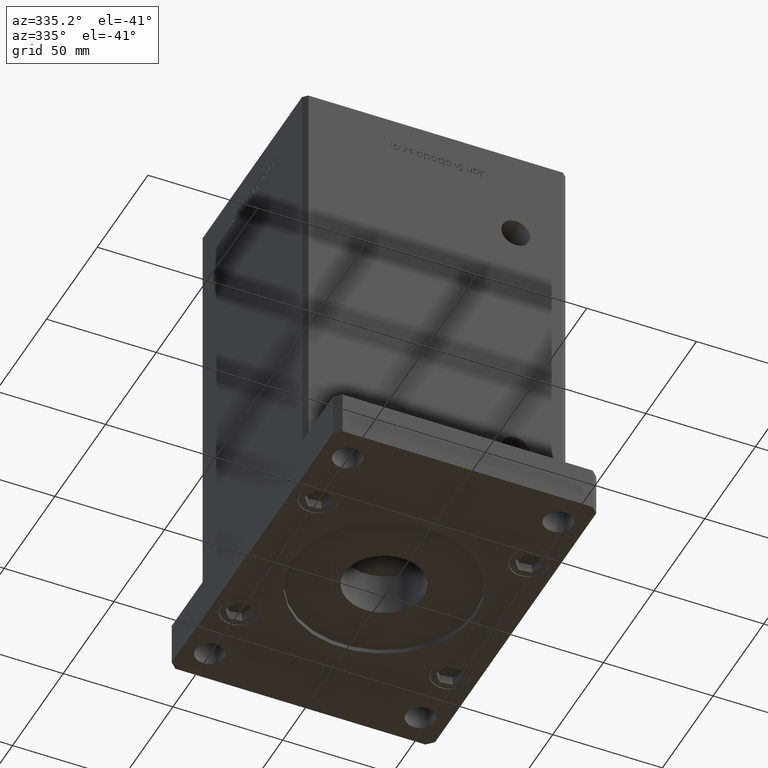
[diagram: clean part render]
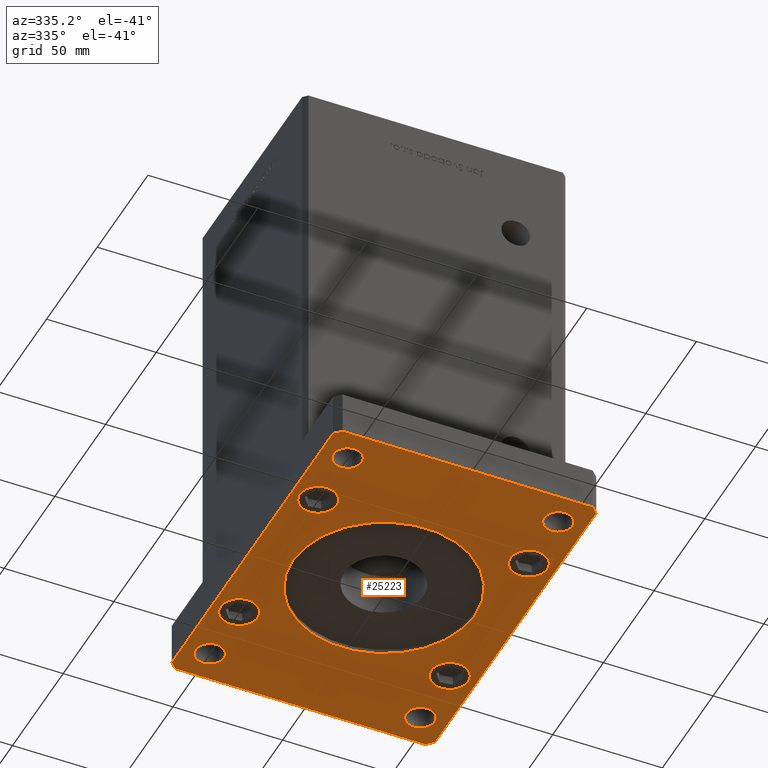
[diagram: same view with one face highlighted and labeled with its STEP entity id]
A machine part, auxiliary view. The second image highlights one B-rep face of the part: STEP entity #25223.
In plain terms, the highlighted planar face has unit normal (0, 0, 1).
Its self-contained STEP definition (entity closure, byte-faithful):
#230 = AXIS2_PLACEMENT_3D ( 'NONE', #3662, #44070, #53286 ) ;
#950 = DIRECTION ( 'NONE',  ( 2.618450529776312260E-16, -1.000000000000000000, 0.000000000000000000 ) ) ;
#1032 = VERTEX_POINT ( 'NONE', #36712 ) ;
#1108 = ORIENTED_EDGE ( 'NONE', *, *, #34745, .T. ) ;
#1352 = DIRECTION ( 'NONE',  ( 1.000000000000000000, 0.000000000000000000, -0.000000000000000000 ) ) ;
#1498 = AXIS2_PLACEMENT_3D ( 'NONE', #50313, #4756, #29681 ) ;
#2266 = LINE ( 'NONE', #23667, #43518 ) ;
#2648 = VECTOR ( 'NONE', #950, 1000.000000000000000 ) ;
#3166 = EDGE_CURVE ( 'NONE', #20511, #48658, #3185, .T. ) ;
#3185 = CIRCLE ( 'NONE', #24806, 8.499999999999992895 ) ;
#3254 = VERTEX_POINT ( 'NONE', #32941 ) ;
#3303 = ORIENTED_EDGE ( 'NONE', *, *, #24381, .T. ) ;
#3662 = CARTESIAN_POINT ( 'NONE',  ( -48.00000000000000000, 68.00000000000001421, 0.000000000000000000 ) ) ;
#3985 = CARTESIAN_POINT ( 'NONE',  ( 48.00000000000000000, -38.99999999999999289, 0.000000000000000000 ) ) ;
#4173 = DIRECTION ( 'NONE',  ( -1.000000000000000000, -2.434699615406043739E-16, 0.000000000000000000 ) ) ;
#4242 = DIRECTION ( 'NONE',  ( 0.000000000000000000, 0.000000000000000000, 1.000000000000000000 ) ) ;
#4375 = DIRECTION ( 'NONE',  ( 0.000000000000000000, 0.000000000000000000, 1.000000000000000000 ) ) ;
#4427 = AXIS2_PLACEMENT_3D ( 'NONE', #15123, #49821, #46286 ) ;
#4756 = DIRECTION ( 'NONE',  ( 0.000000000000000000, 0.000000000000000000, 1.000000000000000000 ) ) ;
#4888 = FACE_OUTER_BOUND ( 'NONE', #33578, .T. ) ;
#5175 = VERTEX_POINT ( 'NONE', #8447 ) ;
#5228 = EDGE_CURVE ( 'NONE', #16765, #16578, #12229, .T. ) ;
#6002 = ORIENTED_EDGE ( 'NONE', *, *, #46256, .F. ) ;
#6025 = ORIENTED_EDGE ( 'NONE', *, *, #17720, .F. ) ;
#6257 = ORIENTED_EDGE ( 'NONE', *, *, #8035, .F. ) ;
#6627 = CARTESIAN_POINT ( 'NONE',  ( 60.00000000000000711, 79.50000000000001421, 0.000000000000000000 ) ) ;
#7029 = CARTESIAN_POINT ( 'NONE',  ( 60.00000000000000000, -79.49999999999990052, 0.000000000000000000 ) ) ;
#7652 = DIRECTION ( 'NONE',  ( 1.000000000000000000, 0.000000000000000000, 0.000000000000000000 ) ) ;
#7677 = DIRECTION ( 'NONE',  ( 1.000000000000000000, 0.000000000000000000, 0.000000000000000000 ) ) ;
#7804 = EDGE_CURVE ( 'NONE', #10296, #31357, #41241, .T. ) ;
#7902 = CARTESIAN_POINT ( 'NONE',  ( 56.49999999999999289, 38.99999999999999289, 0.000000000000000000 ) ) ;
#8035 = EDGE_CURVE ( 'NONE', #52625, #11447, #23093, .T. ) ;
#8387 = CIRCLE ( 'NONE', #52556, 6.500000000000005329 ) ;
#8447 = CARTESIAN_POINT ( 'NONE',  ( 54.50000000000000711, 67.99999999999998579, 0.000000000000000000 ) ) ;
#8958 = CIRCLE ( 'NONE', #27971, 41.50000000000000000 ) ;
#9103 = VERTEX_POINT ( 'NONE', #37948 ) ;
#9759 = PLANE ( 'NONE',  #36159 ) ;
#9786 = VERTEX_POINT ( 'NONE', #7902 ) ;
#10296 = VERTEX_POINT ( 'NONE', #18630 ) ;
#10563 = EDGE_LOOP ( 'NONE', ( #29545, #51802 ) ) ;
#10732 = CIRCLE ( 'NONE', #51423, 41.50000000000000000 ) ;
#10816 = CARTESIAN_POINT ( 'NONE',  ( 48.00000000000000000, 67.99999999999998579, 0.000000000000000000 ) ) ;
#11447 = VERTEX_POINT ( 'NONE', #49092 ) ;
#11981 = ORIENTED_EDGE ( 'NONE', *, *, #27166, .T. ) ;
#12030 = LINE ( 'NONE', #24496, #35163 ) ;
#12229 = LINE ( 'NONE', #45042, #52456 ) ;
#12763 = FACE_BOUND ( 'NONE', #29236, .T. ) ;
#13251 = DIRECTION ( 'NONE',  ( 1.000000000000000000, 0.000000000000000000, 0.000000000000000000 ) ) ;
#13283 = FACE_BOUND ( 'NONE', #10563, .T. ) ;
#13398 = AXIS2_PLACEMENT_3D ( 'NONE', #43640, #23845, #52611 ) ;
#13553 = DIRECTION ( 'NONE',  ( 0.000000000000000000, 0.000000000000000000, 1.000000000000000000 ) ) ;
#13742 = DIRECTION ( 'NONE',  ( 0.000000000000000000, 0.000000000000000000, 1.000000000000000000 ) ) ;
#13976 = VERTEX_POINT ( 'NONE', #31403 ) ;
#14422 = DIRECTION ( 'NONE',  ( 1.000000000000000000, 9.738798461624180871E-16, 0.000000000000000000 ) ) ;
#14662 = CARTESIAN_POINT ( 'NONE',  ( -48.00000000000000711, -39.00000000000000000, 0.000000000000000000 ) ) ;
#14963 = DIRECTION ( 'NONE',  ( 0.000000000000000000, 0.000000000000000000, 1.000000000000000000 ) ) ;
#15086 = EDGE_CURVE ( 'NONE', #48658, #20511, #23863, .T. ) ;
#15123 = CARTESIAN_POINT ( 'NONE',  ( 48.00000000000000000, -38.99999999999999289, 0.000000000000000000 ) ) ;
#15822 = CARTESIAN_POINT ( 'NONE',  ( 0.000000000000000000, 0.000000000000000000, 0.000000000000000000 ) ) ;
#15850 = ORIENTED_EDGE ( 'NONE', *, *, #35839, .T. ) ;
#16204 = CARTESIAN_POINT ( 'NONE',  ( 41.49999999999999289, 67.99999999999998579, 0.000000000000000000 ) ) ;
#16559 = DIRECTION ( 'NONE',  ( 1.000000000000000000, 0.000000000000000000, 0.000000000000000000 ) ) ;
#16578 = VERTEX_POINT ( 'NONE', #35671 ) ;
#16659 = AXIS2_PLACEMENT_3D ( 'NONE', #21436, #4375, #16559 ) ;
#16765 = VERTEX_POINT ( 'NONE', #6627 ) ;
#17092 = FACE_BOUND ( 'NONE', #23569, .T. ) ;
#17378 = ORIENTED_EDGE ( 'NONE', *, *, #18853, .F. ) ;
#17720 = EDGE_CURVE ( 'NONE', #16578, #53610, #12030, .T. ) ;
#17932 = CIRCLE ( 'NONE', #1498, 6.500000000000005329 ) ;
#18620 = DIRECTION ( 'NONE',  ( 4.364084216293856438E-17, 1.000000000000000000, 0.000000000000000000 ) ) ;
#18630 = CARTESIAN_POINT ( 'NONE',  ( 54.49999999999997868, -68.00000000000001421, 0.000000000000000000 ) ) ;
#18853 = EDGE_CURVE ( 'NONE', #53610, #28430, #21158, .T. ) ;
#19033 = VERTEX_POINT ( 'NONE', #26557 ) ;
#19289 = CIRCLE ( 'NONE', #16659, 8.500000000000000000 ) ;
#19465 = VECTOR ( 'NONE', #21410, 1000.000000000000114 ) ;
#19469 = DIRECTION ( 'NONE',  ( 0.000000000000000000, 0.000000000000000000, 1.000000000000000000 ) ) ;
#19513 = VERTEX_POINT ( 'NONE', #20763 ) ;
#19613 = VECTOR ( 'NONE', #14422, 1000.000000000000000 ) ;
#19829 = DIRECTION ( 'NONE',  ( 1.000000000000000000, 0.000000000000000000, 0.000000000000000000 ) ) ;
#19980 = DIRECTION ( 'NONE',  ( 0.000000000000000000, 0.000000000000000000, -1.000000000000000000 ) ) ;
#20363 = ORIENTED_EDGE ( 'NONE', *, *, #44967, .F. ) ;
#20475 = AXIS2_PLACEMENT_3D ( 'NONE', #25269, #53507, #7677 ) ;
#20511 = VERTEX_POINT ( 'NONE', #28628 ) ;
#20763 = CARTESIAN_POINT ( 'NONE',  ( -59.99999999999998579, -79.50000000000002842, 0.000000000000000000 ) ) ;
#20821 = AXIS2_PLACEMENT_3D ( 'NONE', #10816, #19469, #43891 ) ;
#20985 = CIRCLE ( 'NONE', #51312, 6.500000000000005329 ) ;
#21026 = DIRECTION ( 'NONE',  ( 1.000000000000000000, 0.000000000000000000, 0.000000000000000000 ) ) ;
#21044 = DIRECTION ( 'NONE',  ( 0.000000000000000000, 0.000000000000000000, 1.000000000000000000 ) ) ;
#21158 = LINE ( 'NONE', #25225, #49966 ) ;
#21212 = AXIS2_PLACEMENT_3D ( 'NONE', #37908, #50406, #13251 ) ;
#21289 = CARTESIAN_POINT ( 'NONE',  ( 41.49999999999996447, -68.00000000000001421, 0.000000000000000000 ) ) ;
#21410 = DIRECTION ( 'NONE',  ( 0.7071067811865459074, 0.7071067811865491270, 0.000000000000000000 ) ) ;
#21436 = CARTESIAN_POINT ( 'NONE',  ( -48.00000000000000711, -39.00000000000000000, 0.000000000000000000 ) ) ;
#21677 = EDGE_LOOP ( 'NONE', ( #24156, #15850 ) ) ;
#21754 = CIRCLE ( 'NONE', #4427, 8.499999999999992895 ) ;
#22211 = DIRECTION ( 'NONE',  ( 0.000000000000000000, 0.000000000000000000, 1.000000000000000000 ) ) ;
#22417 = DIRECTION ( 'NONE',  ( 1.000000000000000000, 0.000000000000000000, 0.000000000000000000 ) ) ;
#22443 = CARTESIAN_POINT ( 'NONE',  ( 60.00000000000000000, -79.49999999999990052, 0.000000000000000000 ) ) ;
#22454 = EDGE_CURVE ( 'NONE', #9786, #52777, #45747, .T. ) ;
#22940 = EDGE_CURVE ( 'NONE', #5175, #36505, #8387, .T. ) ;
#23093 = LINE ( 'NONE', #51577, #19613 ) ;
#23119 = ORIENTED_EDGE ( 'NONE', *, *, #47128, .T. ) ;
#23206 = CIRCLE ( 'NONE', #53525, 8.499999999999992895 ) ;
#23342 = DIRECTION ( 'NONE',  ( 1.000000000000000000, 0.000000000000000000, 0.000000000000000000 ) ) ;
#23569 = EDGE_LOOP ( 'NONE', ( #52409, #33126 ) ) ;
#23667 = CARTESIAN_POINT ( 'NONE',  ( -59.99999999999998579, -79.50000000000002842, 0.000000000000000000 ) ) ;
#23741 = AXIS2_PLACEMENT_3D ( 'NONE', #14662, #35530, #23342 ) ;
#23845 = DIRECTION ( 'NONE',  ( 0.000000000000000000, 0.000000000000000000, 1.000000000000000000 ) ) ;
#23862 = EDGE_LOOP ( 'NONE', ( #23119, #47210 ) ) ;
#23863 = CIRCLE ( 'NONE', #37701, 8.499999999999992895 ) ;
#24156 = ORIENTED_EDGE ( 'NONE', *, *, #39251, .T. ) ;
#24264 = VERTEX_POINT ( 'NONE', #24296 ) ;
#24296 = CARTESIAN_POINT ( 'NONE',  ( 56.49999999999999289, -38.99999999999999289, 0.000000000000000000 ) ) ;
#24381 = EDGE_CURVE ( 'NONE', #31357, #10296, #17932, .T. ) ;
#24496 = CARTESIAN_POINT ( 'NONE',  ( 57.00000000000002132, 82.50000000000002842, 0.000000000000000000 ) ) ;
#24595 = DIRECTION ( 'NONE',  ( -1.000000000000000000, 0.000000000000000000, 0.000000000000000000 ) ) ;
#24806 = AXIS2_PLACEMENT_3D ( 'NONE', #25926, #13742, #22417 ) ;
#25223 = ADVANCED_FACE ( 'NONE', ( #41751, #4888, #17092, #25474, #12763, #46900, #26269, #37940, #13283, #29806 ), #9759, .F. ) ;
#25225 = CARTESIAN_POINT ( 'NONE',  ( -57.00000000000003553, 82.50000000000000000, 0.000000000000000000 ) ) ;
#25269 = CARTESIAN_POINT ( 'NONE',  ( 48.00000000000000000, 38.99999999999999289, 0.000000000000000000 ) ) ;
#25308 = VERTEX_POINT ( 'NONE', #7029 ) ;
#25474 = FACE_BOUND ( 'NONE', #36216, .T. ) ;
#25735 = CARTESIAN_POINT ( 'NONE',  ( 48.00000000000000000, 67.99999999999998579, 0.000000000000000000 ) ) ;
#25926 = CARTESIAN_POINT ( 'NONE',  ( -48.00000000000001421, 39.00000000000000000, 0.000000000000000000 ) ) ;
#26045 = ORIENTED_EDGE ( 'NONE', *, *, #22454, .T. ) ;
#26269 = FACE_BOUND ( 'NONE', #21677, .T. ) ;
#26391 = DIRECTION ( 'NONE',  ( 0.000000000000000000, 0.000000000000000000, 1.000000000000000000 ) ) ;
#26557 = CARTESIAN_POINT ( 'NONE',  ( -41.49999999999999289, 68.00000000000001421, 0.000000000000000000 ) ) ;
#26658 = DIRECTION ( 'NONE',  ( 0.7071067811865474617, -0.7071067811865474617, 0.000000000000000000 ) ) ;
#27166 = EDGE_CURVE ( 'NONE', #52777, #9786, #23206, .T. ) ;
#27333 = CARTESIAN_POINT ( 'NONE',  ( -41.50000000000000000, 0.000000000000000000, 0.000000000000000000 ) ) ;
#27574 = CARTESIAN_POINT ( 'NONE',  ( -54.49999999999997868, -68.00000000000001421, 0.000000000000000000 ) ) ;
#27971 = AXIS2_PLACEMENT_3D ( 'NONE', #15822, #40756, #52991 ) ;
#28160 = EDGE_LOOP ( 'NONE', ( #11981, #26045 ) ) ;
#28367 = CARTESIAN_POINT ( 'NONE',  ( 39.50000000000000711, 38.99999999999999289, 0.000000000000000000 ) ) ;
#28430 = VERTEX_POINT ( 'NONE', #49557 ) ;
#28628 = CARTESIAN_POINT ( 'NONE',  ( -39.50000000000002132, 39.00000000000000000, 0.000000000000000000 ) ) ;
#29088 = ORIENTED_EDGE ( 'NONE', *, *, #48211, .F. ) ;
#29236 = EDGE_LOOP ( 'NONE', ( #43112, #46806 ) ) ;
#29545 = ORIENTED_EDGE ( 'NONE', *, *, #15086, .T. ) ;
#29681 = DIRECTION ( 'NONE',  ( 1.000000000000000000, 0.000000000000000000, 0.000000000000000000 ) ) ;
#29806 = FACE_BOUND ( 'NONE', #52081, .T. ) ;
#30247 = VERTEX_POINT ( 'NONE', #27333 ) ;
#30338 = CIRCLE ( 'NONE', #20821, 6.500000000000005329 ) ;
#30463 = LINE ( 'NONE', #42405, #2648 ) ;
#30843 = CARTESIAN_POINT ( 'NONE',  ( -57.00000000000003553, 82.50000000000000000, 0.000000000000000000 ) ) ;
#31357 = VERTEX_POINT ( 'NONE', #21289 ) ;
#31403 = CARTESIAN_POINT ( 'NONE',  ( -56.50000000000000711, -39.00000000000000000, 0.000000000000000000 ) ) ;
#31543 = CARTESIAN_POINT ( 'NONE',  ( 41.50000000000000000, 5.082284216461515748E-15, 0.000000000000000000 ) ) ;
#31555 = VERTEX_POINT ( 'NONE', #31543 ) ;
#32064 = EDGE_CURVE ( 'NONE', #25308, #16765, #38405, .T. ) ;
#32941 = CARTESIAN_POINT ( 'NONE',  ( -39.50000000000000711, -39.00000000000000000, 0.000000000000000000 ) ) ;
#33126 = ORIENTED_EDGE ( 'NONE', *, *, #42551, .T. ) ;
#33193 = CARTESIAN_POINT ( 'NONE',  ( -56.50000000000000711, 39.00000000000000000, 0.000000000000000000 ) ) ;
#33578 = EDGE_LOOP ( 'NONE', ( #6257, #45867, #44513, #17378, #6025, #46117, #35234, #29088 ) ) ;
#33761 = VECTOR ( 'NONE', #18620, 1000.000000000000000 ) ;
#34489 = EDGE_CURVE ( 'NONE', #28430, #19513, #30463, .T. ) ;
#34745 = EDGE_CURVE ( 'NONE', #36505, #5175, #30338, .T. ) ;
#35163 = VECTOR ( 'NONE', #4173, 1000.000000000000000 ) ;
#35234 = ORIENTED_EDGE ( 'NONE', *, *, #32064, .F. ) ;
#35514 = VERTEX_POINT ( 'NONE', #46083 ) ;
#35530 = DIRECTION ( 'NONE',  ( 0.000000000000000000, 0.000000000000000000, 1.000000000000000000 ) ) ;
#35568 = CARTESIAN_POINT ( 'NONE',  ( 47.99999999999997158, -68.00000000000001421, 0.000000000000000000 ) ) ;
#35671 = CARTESIAN_POINT ( 'NONE',  ( 57.00000000000002132, 82.50000000000002842, 0.000000000000000000 ) ) ;
#35839 = EDGE_CURVE ( 'NONE', #24264, #35514, #21754, .T. ) ;
#35917 = ORIENTED_EDGE ( 'NONE', *, *, #7804, .T. ) ;
#36159 = AXIS2_PLACEMENT_3D ( 'NONE', #46367, #13553, #1352 ) ;
#36216 = EDGE_LOOP ( 'NONE', ( #1108, #42373 ) ) ;
#36505 = VERTEX_POINT ( 'NONE', #16204 ) ;
#36631 = DIRECTION ( 'NONE',  ( 0.000000000000000000, 0.000000000000000000, 1.000000000000000000 ) ) ;
#36712 = CARTESIAN_POINT ( 'NONE',  ( -41.49999999999996447, -68.00000000000001421, 0.000000000000000000 ) ) ;
#37701 = AXIS2_PLACEMENT_3D ( 'NONE', #41366, #4242, #21026 ) ;
#37908 = CARTESIAN_POINT ( 'NONE',  ( -47.99999999999997158, -68.00000000000001421, 0.000000000000000000 ) ) ;
#37940 = FACE_BOUND ( 'NONE', #28160, .T. ) ;
#37948 = CARTESIAN_POINT ( 'NONE',  ( -54.50000000000000711, 68.00000000000001421, 0.000000000000000000 ) ) ;
#38405 = LINE ( 'NONE', #22443, #33761 ) ;
#38452 = DIRECTION ( 'NONE',  ( 1.000000000000000000, 0.000000000000000000, 0.000000000000000000 ) ) ;
#39102 = VERTEX_POINT ( 'NONE', #27574 ) ;
#39251 = EDGE_CURVE ( 'NONE', #35514, #24264, #52928, .T. ) ;
#40198 = CIRCLE ( 'NONE', #13398, 6.500000000000005329 ) ;
#40539 = EDGE_CURVE ( 'NONE', #9103, #19033, #46979, .T. ) ;
#40695 = DIRECTION ( 'NONE',  ( -0.7071067811865435759, 0.7071067811865515695, 0.000000000000000000 ) ) ;
#40756 = DIRECTION ( 'NONE',  ( 0.000000000000000000, 0.000000000000000000, -1.000000000000000000 ) ) ;
#40781 = EDGE_CURVE ( 'NONE', #3254, #13976, #19289, .T. ) ;
#41125 = EDGE_CURVE ( 'NONE', #19513, #52625, #2266, .T. ) ;
#41241 = CIRCLE ( 'NONE', #48186, 6.500000000000005329 ) ;
#41366 = CARTESIAN_POINT ( 'NONE',  ( -48.00000000000001421, 39.00000000000000000, 0.000000000000000000 ) ) ;
#41751 = FACE_BOUND ( 'NONE', #53144, .T. ) ;
#42373 = ORIENTED_EDGE ( 'NONE', *, *, #22940, .T. ) ;
#42401 = CARTESIAN_POINT ( 'NONE',  ( -47.99999999999997158, -68.00000000000001421, 0.000000000000000000 ) ) ;
#42405 = CARTESIAN_POINT ( 'NONE',  ( -60.00000000000002842, 79.50000000000001421, 0.000000000000000000 ) ) ;
#42551 = EDGE_CURVE ( 'NONE', #1032, #39102, #20985, .T. ) ;
#43112 = ORIENTED_EDGE ( 'NONE', *, *, #40539, .T. ) ;
#43518 = VECTOR ( 'NONE', #26658, 1000.000000000000114 ) ;
#43640 = CARTESIAN_POINT ( 'NONE',  ( -48.00000000000000000, 68.00000000000001421, 0.000000000000000000 ) ) ;
#43891 = DIRECTION ( 'NONE',  ( 1.000000000000000000, 0.000000000000000000, 0.000000000000000000 ) ) ;
#44070 = DIRECTION ( 'NONE',  ( 0.000000000000000000, 0.000000000000000000, 1.000000000000000000 ) ) ;
#44513 = ORIENTED_EDGE ( 'NONE', *, *, #34489, .F. ) ;
#44604 = CIRCLE ( 'NONE', #21212, 6.500000000000005329 ) ;
#44786 = CARTESIAN_POINT ( 'NONE',  ( 48.00000000000000000, 38.99999999999999289, 0.000000000000000000 ) ) ;
#44967 = EDGE_CURVE ( 'NONE', #30247, #31555, #8958, .T. ) ;
#45034 = DIRECTION ( 'NONE',  ( -0.7071067811865474617, -0.7071067811865474617, 0.000000000000000000 ) ) ;
#45042 = CARTESIAN_POINT ( 'NONE',  ( 60.00000000000000711, 79.50000000000001421, 0.000000000000000000 ) ) ;
#45747 = CIRCLE ( 'NONE', #20475, 8.499999999999992895 ) ;
#45835 = LINE ( 'NONE', #49628, #19465 ) ;
#45867 = ORIENTED_EDGE ( 'NONE', *, *, #41125, .F. ) ;
#46083 = CARTESIAN_POINT ( 'NONE',  ( 39.50000000000000711, -38.99999999999999289, 0.000000000000000000 ) ) ;
#46117 = ORIENTED_EDGE ( 'NONE', *, *, #5228, .F. ) ;
#46256 = EDGE_CURVE ( 'NONE', #31555, #30247, #10732, .T. ) ;
#46278 = CIRCLE ( 'NONE', #23741, 8.500000000000000000 ) ;
#46286 = DIRECTION ( 'NONE',  ( 1.000000000000000000, 0.000000000000000000, 0.000000000000000000 ) ) ;
#46330 = CARTESIAN_POINT ( 'NONE',  ( -56.99999999999999289, -82.50000000000001421, 0.000000000000000000 ) ) ;
#46367 = CARTESIAN_POINT ( 'NONE',  ( 0.000000000000000000, 0.000000000000000000, 0.000000000000000000 ) ) ;
#46806 = ORIENTED_EDGE ( 'NONE', *, *, #52354, .T. ) ;
#46900 = FACE_BOUND ( 'NONE', #23862, .T. ) ;
#46979 = CIRCLE ( 'NONE', #230, 6.500000000000005329 ) ;
#47128 = EDGE_CURVE ( 'NONE', #13976, #3254, #46278, .T. ) ;
#47210 = ORIENTED_EDGE ( 'NONE', *, *, #40781, .T. ) ;
#48186 = AXIS2_PLACEMENT_3D ( 'NONE', #35568, #14963, #19829 ) ;
#48211 = EDGE_CURVE ( 'NONE', #11447, #25308, #45835, .T. ) ;
#48658 = VERTEX_POINT ( 'NONE', #33193 ) ;
#49092 = CARTESIAN_POINT ( 'NONE',  ( 57.00000000000000711, -82.49999999999990052, 0.000000000000000000 ) ) ;
#49557 = CARTESIAN_POINT ( 'NONE',  ( -60.00000000000002842, 79.50000000000001421, 0.000000000000000000 ) ) ;
#49628 = CARTESIAN_POINT ( 'NONE',  ( 57.00000000000000711, -82.49999999999990052, 0.000000000000000000 ) ) ;
#49821 = DIRECTION ( 'NONE',  ( 0.000000000000000000, 0.000000000000000000, 1.000000000000000000 ) ) ;
#49966 = VECTOR ( 'NONE', #45034, 1000.000000000000114 ) ;
#50234 = EDGE_CURVE ( 'NONE', #39102, #1032, #44604, .T. ) ;
#50313 = CARTESIAN_POINT ( 'NONE',  ( 47.99999999999997158, -68.00000000000001421, 0.000000000000000000 ) ) ;
#50406 = DIRECTION ( 'NONE',  ( 0.000000000000000000, 0.000000000000000000, 1.000000000000000000 ) ) ;
#51179 = AXIS2_PLACEMENT_3D ( 'NONE', #3985, #21044, #53625 ) ;
#51312 = AXIS2_PLACEMENT_3D ( 'NONE', #42401, #26391, #51363 ) ;
#51363 = DIRECTION ( 'NONE',  ( 1.000000000000000000, 0.000000000000000000, 0.000000000000000000 ) ) ;
#51423 = AXIS2_PLACEMENT_3D ( 'NONE', #53633, #19980, #24595 ) ;
#51577 = CARTESIAN_POINT ( 'NONE',  ( -56.99999999999999289, -82.50000000000001421, 0.000000000000000000 ) ) ;
#51802 = ORIENTED_EDGE ( 'NONE', *, *, #3166, .T. ) ;
#52081 = EDGE_LOOP ( 'NONE', ( #3303, #35917 ) ) ;
#52354 = EDGE_CURVE ( 'NONE', #19033, #9103, #40198, .T. ) ;
#52409 = ORIENTED_EDGE ( 'NONE', *, *, #50234, .T. ) ;
#52456 = VECTOR ( 'NONE', #40695, 999.9999999999998863 ) ;
#52556 = AXIS2_PLACEMENT_3D ( 'NONE', #25735, #22211, #38452 ) ;
#52611 = DIRECTION ( 'NONE',  ( 1.000000000000000000, 0.000000000000000000, 0.000000000000000000 ) ) ;
#52625 = VERTEX_POINT ( 'NONE', #46330 ) ;
#52777 = VERTEX_POINT ( 'NONE', #28367 ) ;
#52928 = CIRCLE ( 'NONE', #51179, 8.499999999999992895 ) ;
#52991 = DIRECTION ( 'NONE',  ( -1.000000000000000000, 0.000000000000000000, 0.000000000000000000 ) ) ;
#53144 = EDGE_LOOP ( 'NONE', ( #20363, #6002 ) ) ;
#53286 = DIRECTION ( 'NONE',  ( 1.000000000000000000, 0.000000000000000000, 0.000000000000000000 ) ) ;
#53507 = DIRECTION ( 'NONE',  ( 0.000000000000000000, 0.000000000000000000, 1.000000000000000000 ) ) ;
#53525 = AXIS2_PLACEMENT_3D ( 'NONE', #44786, #36631, #7652 ) ;
#53610 = VERTEX_POINT ( 'NONE', #30843 ) ;
#53625 = DIRECTION ( 'NONE',  ( 1.000000000000000000, 0.000000000000000000, 0.000000000000000000 ) ) ;
#53633 = CARTESIAN_POINT ( 'NONE',  ( 0.000000000000000000, 0.000000000000000000, 0.000000000000000000 ) ) ;